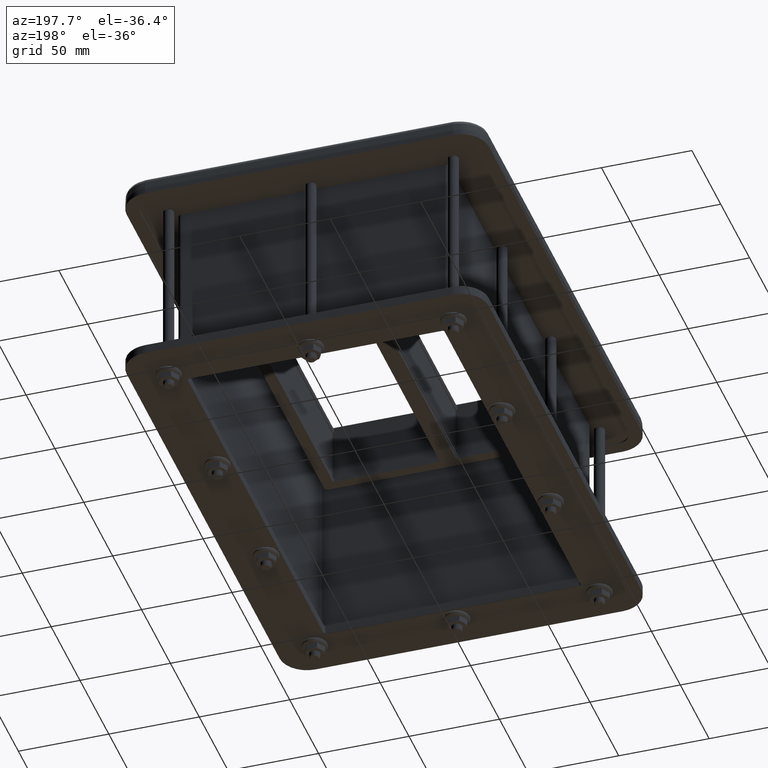
[diagram: clean part render]
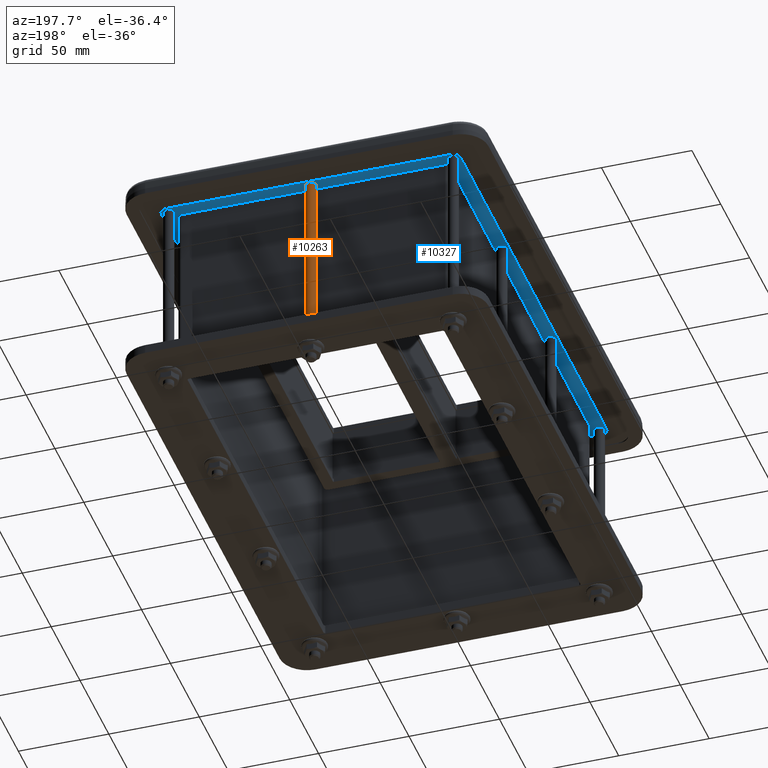
[diagram: same view with the hole feature highlighted: cylindrical wall and planar end face, labeled with their STEP entity ids]
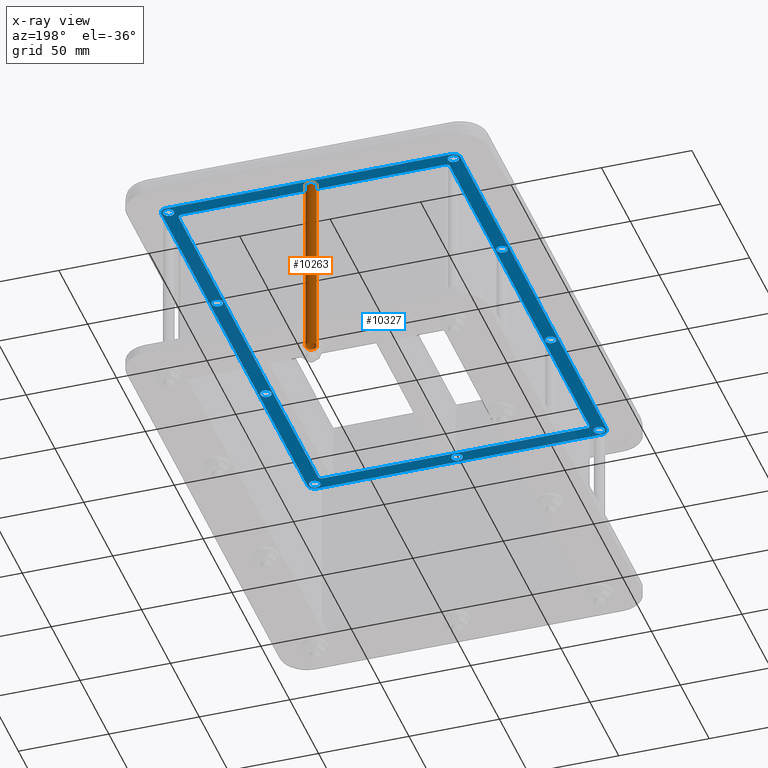
[diagram: x-ray of the same camera — body ghosted, the hole faces saturated]
A machine part, auxiliary view. The highlighted faces form one hole feature of diameter 6 mm: the cylindrical wall (entity #10263, orange) and its adjacent planar end face (entity #10327, blue) — they share a circular edge in the B-rep.
The next image is the same camera in x-ray (body ghosted, the hole faces saturated) — the bore reads through the body.
Wall:
#1124=FACE_OUTER_BOUND('',#1755,.T.);
#1755=EDGE_LOOP('',(#7243,#7244,#7245,#7246));
#2316=LINE('',#15797,#2988);
#2988=VECTOR('',#12492,3.);
#3741=CIRCLE('',#11047,3.);
#3745=CIRCLE('',#11066,3.);
#4275=VERTEX_POINT('',#15701);
#4290=VERTEX_POINT('',#15796);
#5367=EDGE_CURVE('',#4275,#4275,#3741,.T.);
#5396=EDGE_CURVE('',#4275,#4290,#2316,.T.);
#5397=EDGE_CURVE('',#4290,#4290,#3745,.T.);
#7243=ORIENTED_EDGE('',*,*,#5367,.T.);
#7244=ORIENTED_EDGE('',*,*,#5396,.T.);
#7245=ORIENTED_EDGE('',*,*,#5397,.F.);
#7246=ORIENTED_EDGE('',*,*,#5396,.F.);
#9381=CYLINDRICAL_SURFACE('',#11065,3.);
#10263=ADVANCED_FACE('',(#1124),#9381,.T.);
#11047=AXIS2_PLACEMENT_3D('',#15702,#12447,#12448);
#11065=AXIS2_PLACEMENT_3D('',#15795,#12490,#12491);
#11066=AXIS2_PLACEMENT_3D('',#15798,#12493,#12494);
#12447=DIRECTION('center_axis',(-3.26025335058604E-33,-9.14125345840323E-33,
1.));
#12448=DIRECTION('ref_axis',(1.,1.93241896527716E-33,-5.69673073916615E-17));
#12490=DIRECTION('center_axis',(-5.69673073916615E-17,2.51622236764938E-17,
-1.));
#12491=DIRECTION('ref_axis',(1.,1.93241896527716E-33,-5.69673073916615E-17));
#12492=DIRECTION('',(5.69673073916615E-17,-2.51622236764938E-17,1.));
#12493=DIRECTION('center_axis',(0.,0.,1.));
#12494=DIRECTION('ref_axis',(1.,1.93241896527716E-33,-5.69673073916615E-17));
#15701=CARTESIAN_POINT('',(-3.,126.5,-124.2));
#15702=CARTESIAN_POINT('Origin',(-4.61435189872454E-15,126.5,-124.2));
#15795=CARTESIAN_POINT('Origin',(3.15544362088403E-29,126.5,-43.2));
#15796=CARTESIAN_POINT('',(-3.,126.5,-19.2));
#15797=CARTESIAN_POINT('',(-3.,126.5,-43.2));
#15798=CARTESIAN_POINT('Origin',(1.36721537739991E-15,126.5,-19.2));
End face:
#643=FACE_BOUND('',#1824,.T.);
#644=FACE_BOUND('',#1825,.T.);
#645=FACE_BOUND('',#1826,.T.);
#646=FACE_BOUND('',#1827,.T.);
#647=FACE_BOUND('',#1828,.T.);
#648=FACE_BOUND('',#1829,.T.);
#649=FACE_BOUND('',#1830,.T.);
#650=FACE_BOUND('',#1831,.T.);
#651=FACE_BOUND('',#1832,.T.);
#652=FACE_BOUND('',#1833,.T.);
#653=FACE_BOUND('',#1834,.T.);
#786=PLANE('',#11167);
#1188=FACE_OUTER_BOUND('',#1823,.T.);
#1823=EDGE_LOOP('',(#7533,#7534,#7535,#7536,#7537,#7538,#7539,#7540));
#1824=EDGE_LOOP('',(#7541));
#1825=EDGE_LOOP('',(#7542));
#1826=EDGE_LOOP('',(#7543));
#1827=EDGE_LOOP('',(#7544));
#1828=EDGE_LOOP('',(#7545));
#1829=EDGE_LOOP('',(#7546));
#1830=EDGE_LOOP('',(#7547));
#1831=EDGE_LOOP('',(#7548));
#1832=EDGE_LOOP('',(#7549));
#1833=EDGE_LOOP('',(#7550));
#1834=EDGE_LOOP('',(#7551,#7552,#7553,#7554,#7555,#7556,#7557,#7558));
#2377=LINE('',#16108,#3049);
#2380=LINE('',#16116,#3052);
#2383=LINE('',#16124,#3055);
#2386=LINE('',#16131,#3058);
#2387=LINE('',#16137,#3059);
#2388=LINE('',#16141,#3060);
#2389=LINE('',#16145,#3061);
#2390=LINE('',#16148,#3062);
#3049=VECTOR('',#12737,10.);
#3052=VECTOR('',#12746,10.);
#3055=VECTOR('',#12755,10.);
#3058=VECTOR('',#12764,10.);
#3059=VECTOR('',#12769,10.);
#3060=VECTOR('',#12772,10.);
#3061=VECTOR('',#12775,10.);
#3062=VECTOR('',#12778,10.);
#3600=CIRCLE('',#10772,3.);
#3634=CIRCLE('',#10826,3.);
#3651=CIRCLE('',#10862,3.);
#3664=CIRCLE('',#10892,3.);
#3681=CIRCLE('',#10928,3.);
#3698=CIRCLE('',#10964,3.);
#3715=CIRCLE('',#11000,3.);
#3732=CIRCLE('',#11036,3.);
#3745=CIRCLE('',#11066,3.);
#3762=CIRCLE('',#11102,3.);
#3779=CIRCLE('',#11156,2.1);
#3780=CIRCLE('',#11159,2.1);
#3781=CIRCLE('',#11162,2.1);
#3782=CIRCLE('',#11165,2.1);
#3783=CIRCLE('',#11168,4.);
#3784=CIRCLE('',#11169,3.99999999999997);
#3785=CIRCLE('',#11170,3.99999999999999);
#3786=CIRCLE('',#11171,3.99999999999999);
#4049=VERTEX_POINT('',#14511);
#4102=VERTEX_POINT('',#14729);
#4130=VERTEX_POINT('',#14896);
#4154=VERTEX_POINT('',#15012);
#4182=VERTEX_POINT('',#15179);
#4210=VERTEX_POINT('',#15346);
#4238=VERTEX_POINT('',#15513);
#4266=VERTEX_POINT('',#15680);
#4290=VERTEX_POINT('',#15796);
#4318=VERTEX_POINT('',#15963);
#4351=VERTEX_POINT('',#16101);
#4352=VERTEX_POINT('',#16102);
#4353=VERTEX_POINT('',#16107);
#4354=VERTEX_POINT('',#16111);
#4355=VERTEX_POINT('',#16115);
#4356=VERTEX_POINT('',#16119);
#4357=VERTEX_POINT('',#16123);
#4358=VERTEX_POINT('',#16127);
#4359=VERTEX_POINT('',#16133);
#4360=VERTEX_POINT('',#16134);
#4361=VERTEX_POINT('',#16136);
#4362=VERTEX_POINT('',#16138);
#4363=VERTEX_POINT('',#16140);
#4364=VERTEX_POINT('',#16142);
#4365=VERTEX_POINT('',#16144);
#4366=VERTEX_POINT('',#16146);
#5024=EDGE_CURVE('',#4049,#4049,#3600,.T.);
#5094=EDGE_CURVE('',#4102,#4102,#3634,.T.);
#5139=EDGE_CURVE('',#4130,#4130,#3651,.T.);
#5178=EDGE_CURVE('',#4154,#4154,#3664,.T.);
#5223=EDGE_CURVE('',#4182,#4182,#3681,.T.);
#5268=EDGE_CURVE('',#4210,#4210,#3698,.T.);
#5313=EDGE_CURVE('',#4238,#4238,#3715,.T.);
#5358=EDGE_CURVE('',#4266,#4266,#3732,.T.);
#5397=EDGE_CURVE('',#4290,#4290,#3745,.T.);
#5442=EDGE_CURVE('',#4318,#4318,#3762,.T.);
#5509=EDGE_CURVE('',#4351,#4352,#3779,.T.);
#5512=EDGE_CURVE('',#4352,#4353,#2377,.T.);
#5514=EDGE_CURVE('',#4353,#4354,#3780,.T.);
#5516=EDGE_CURVE('',#4354,#4355,#2380,.T.);
#5518=EDGE_CURVE('',#4355,#4356,#3781,.T.);
#5520=EDGE_CURVE('',#4356,#4357,#2383,.T.);
#5522=EDGE_CURVE('',#4357,#4358,#3782,.T.);
#5524=EDGE_CURVE('',#4358,#4351,#2386,.T.);
#5525=EDGE_CURVE('',#4359,#4360,#3783,.T.);
#5526=EDGE_CURVE('',#4361,#4359,#2387,.T.);
#5527=EDGE_CURVE('',#4362,#4361,#3784,.T.);
#5528=EDGE_CURVE('',#4363,#4362,#2388,.T.);
#5529=EDGE_CURVE('',#4364,#4363,#3785,.T.);
#5530=EDGE_CURVE('',#4365,#4364,#2389,.T.);
#5531=EDGE_CURVE('',#4366,#4365,#3786,.T.);
#5532=EDGE_CURVE('',#4360,#4366,#2390,.T.);
#7533=ORIENTED_EDGE('',*,*,#5525,.F.);
#7534=ORIENTED_EDGE('',*,*,#5526,.F.);
#7535=ORIENTED_EDGE('',*,*,#5527,.F.);
#7536=ORIENTED_EDGE('',*,*,#5528,.F.);
#7537=ORIENTED_EDGE('',*,*,#5529,.F.);
#7538=ORIENTED_EDGE('',*,*,#5530,.F.);
#7539=ORIENTED_EDGE('',*,*,#5531,.F.);
#7540=ORIENTED_EDGE('',*,*,#5532,.F.);
#7541=ORIENTED_EDGE('',*,*,#5442,.T.);
#7542=ORIENTED_EDGE('',*,*,#5397,.T.);
#7543=ORIENTED_EDGE('',*,*,#5358,.T.);
#7544=ORIENTED_EDGE('',*,*,#5313,.T.);
#7545=ORIENTED_EDGE('',*,*,#5268,.T.);
#7546=ORIENTED_EDGE('',*,*,#5223,.T.);
#7547=ORIENTED_EDGE('',*,*,#5178,.T.);
#7548=ORIENTED_EDGE('',*,*,#5139,.T.);
#7549=ORIENTED_EDGE('',*,*,#5094,.T.);
#7550=ORIENTED_EDGE('',*,*,#5024,.T.);
#7551=ORIENTED_EDGE('',*,*,#5509,.T.);
#7552=ORIENTED_EDGE('',*,*,#5512,.T.);
#7553=ORIENTED_EDGE('',*,*,#5514,.T.);
#7554=ORIENTED_EDGE('',*,*,#5516,.T.);
#7555=ORIENTED_EDGE('',*,*,#5518,.T.);
#7556=ORIENTED_EDGE('',*,*,#5520,.T.);
#7557=ORIENTED_EDGE('',*,*,#5522,.T.);
#7558=ORIENTED_EDGE('',*,*,#5524,.T.);
#10327=ADVANCED_FACE('',(#1188,#643,#644,#645,#646,#647,#648,#649,#650,
#651,#652,#653),#786,.F.);
#10772=AXIS2_PLACEMENT_3D('',#14513,#11833,#11834);
#10826=AXIS2_PLACEMENT_3D('',#14731,#11957,#11958);
#10862=AXIS2_PLACEMENT_3D('',#14898,#12037,#12038);
#10892=AXIS2_PLACEMENT_3D('',#15014,#12105,#12106);
#10928=AXIS2_PLACEMENT_3D('',#15181,#12185,#12186);
#10964=AXIS2_PLACEMENT_3D('',#15348,#12265,#12266);
#11000=AXIS2_PLACEMENT_3D('',#15515,#12345,#12346);
#11036=AXIS2_PLACEMENT_3D('',#15682,#12425,#12426);
#11066=AXIS2_PLACEMENT_3D('',#15798,#12493,#12494);
#11102=AXIS2_PLACEMENT_3D('',#15965,#12573,#12574);
#11156=AXIS2_PLACEMENT_3D('',#16103,#12731,#12732);
#11159=AXIS2_PLACEMENT_3D('',#16112,#12741,#12742);
#11162=AXIS2_PLACEMENT_3D('',#16120,#12750,#12751);
#11165=AXIS2_PLACEMENT_3D('',#16128,#12759,#12760);
#11167=AXIS2_PLACEMENT_3D('',#16132,#12765,#12766);
#11168=AXIS2_PLACEMENT_3D('',#16135,#12767,#12768);
#11169=AXIS2_PLACEMENT_3D('',#16139,#12770,#12771);
#11170=AXIS2_PLACEMENT_3D('',#16143,#12773,#12774);
#11171=AXIS2_PLACEMENT_3D('',#16147,#12776,#12777);
#11833=DIRECTION('center_axis',(0.,0.,1.));
#11834=DIRECTION('ref_axis',(1.,9.95682444457783E-60,2.18360471415087E-16));
#11957=DIRECTION('center_axis',(0.,0.,1.));
#11958=DIRECTION('ref_axis',(1.,1.93241896527685E-33,-3.18562079941605E-17));
#12037=DIRECTION('center_axis',(0.,0.,1.));
#12038=DIRECTION('ref_axis',(1.,1.40017843751876E-58,2.22527861478278E-16));
#12105=DIRECTION('center_axis',(0.,0.,1.));
#12106=DIRECTION('ref_axis',(1.,1.93241896527771E-33,3.70637849236481E-15));
#12185=DIRECTION('center_axis',(0.,0.,1.));
#12186=DIRECTION('ref_axis',(0.33112807963815,0.943585817440656,1.96263524482825E-16));
#12265=DIRECTION('center_axis',(0.,0.,1.));
#12266=DIRECTION('ref_axis',(1.,1.93241896527501E-33,1.52890624585544E-16));
#12345=DIRECTION('center_axis',(0.,0.,1.));
#12346=DIRECTION('ref_axis',(1.,1.9324189652788E-33,-1.47942529872301E-16));
#12425=DIRECTION('center_axis',(0.,0.,1.));
#12426=DIRECTION('ref_axis',(1.,4.90939225826135E-163,4.37804773852009E-18));
#12493=DIRECTION('center_axis',(0.,0.,1.));
#12494=DIRECTION('ref_axis',(1.,1.93241896527716E-33,-5.69673073916615E-17));
#12573=DIRECTION('center_axis',(0.,0.,1.));
#12574=DIRECTION('ref_axis',(1.,1.93241896527703E-33,-1.00485275398481E-17));
#12731=DIRECTION('center_axis',(0.,0.,1.));
#12732=DIRECTION('ref_axis',(1.,0.,0.));
#12737=DIRECTION('',(0.,1.,0.));
#12741=DIRECTION('center_axis',(0.,0.,1.));
#12742=DIRECTION('ref_axis',(0.,1.,0.));
#12746=DIRECTION('',(-1.,-1.21835174170113E-16,0.));
#12750=DIRECTION('center_axis',(0.,0.,1.));
#12751=DIRECTION('ref_axis',(-1.,0.,0.));
#12755=DIRECTION('',(7.35780861599773E-17,-1.,0.));
#12759=DIRECTION('center_axis',(0.,0.,1.));
#12760=DIRECTION('ref_axis',(0.,-1.,0.));
#12764=DIRECTION('',(1.,0.,0.));
#12765=DIRECTION('center_axis',(0.,0.,1.));
#12766=DIRECTION('ref_axis',(1.,0.,0.));
#12767=DIRECTION('center_axis',(0.,0.,1.));
#12768=DIRECTION('ref_axis',(5.55111512312577E-16,1.,0.));
#12769=DIRECTION('',(0.,1.,0.));
#12770=DIRECTION('center_axis',(0.,0.,1.));
#12771=DIRECTION('ref_axis',(1.,0.,0.));
#12772=DIRECTION('',(1.,-2.25712431944123E-16,0.));
#12773=DIRECTION('center_axis',(0.,0.,1.));
#12774=DIRECTION('ref_axis',(0.,-1.,0.));
#12775=DIRECTION('',(0.,-1.,0.));
#12776=DIRECTION('center_axis',(0.,0.,1.));
#12777=DIRECTION('ref_axis',(-1.,-1.11022302462516E-15,0.));
#12778=DIRECTION('',(-1.,2.82140539930154E-17,0.));
#14511=CARTESIAN_POINT('',(75.7,42.2123569059676,-19.2));
#14513=CARTESIAN_POINT('Origin',(78.7,42.2123569059676,-19.2));
#14729=CARTESIAN_POINT('',(75.7,-42.2123569059676,-19.2));
#14731=CARTESIAN_POINT('Origin',(78.7,-42.2123569059676,-19.2));
#14896=CARTESIAN_POINT('',(75.7,-126.512356905968,-19.2));
#14898=CARTESIAN_POINT('Origin',(78.7,-126.512356905968,-19.2));
#15012=CARTESIAN_POINT('',(-3.00000000000009,-126.5,-19.2));
#15014=CARTESIAN_POINT('Origin',(-8.89530838167566E-14,-126.5,-19.2));
#15179=CARTESIAN_POINT('',(-79.6933842389145,-129.343114358289,-19.2));
#15181=CARTESIAN_POINT('Origin',(-78.7,-126.512356905967,-19.2));
#15346=CARTESIAN_POINT('',(-81.7,-42.2123569059675,-19.2));
#15348=CARTESIAN_POINT('Origin',(-78.7,-42.2123569059675,-19.2));
#15513=CARTESIAN_POINT('',(-81.7,42.2123569059675,-19.2));
#15515=CARTESIAN_POINT('Origin',(-78.7,42.2123569059675,-19.2));
#15680=CARTESIAN_POINT('',(-81.7,126.512356905968,-19.2));
#15682=CARTESIAN_POINT('Origin',(-78.7,126.512356905968,-19.2));
#15796=CARTESIAN_POINT('',(-3.,126.5,-19.2));
#15798=CARTESIAN_POINT('Origin',(1.36721537739991E-15,126.5,-19.2));
#15963=CARTESIAN_POINT('',(75.7,126.512356905968,-19.2));
#15965=CARTESIAN_POINT('Origin',(78.7,126.512356905968,-19.2));
#16101=CARTESIAN_POINT('',(72.9,-122.812356905968,-19.2));
#16102=CARTESIAN_POINT('',(75.,-120.712356905968,-19.2));
#16103=CARTESIAN_POINT('Origin',(72.9,-120.712356905968,-19.2));
#16107=CARTESIAN_POINT('',(75.,120.712356905968,-19.2));
#16108=CARTESIAN_POINT('',(75.,123.606178452984,-19.2));
#16111=CARTESIAN_POINT('',(72.9,122.812356905968,-19.2));
#16112=CARTESIAN_POINT('Origin',(72.9,120.712356905968,-19.2));
#16115=CARTESIAN_POINT('',(-72.9,122.812356905968,-19.2));
#16116=CARTESIAN_POINT('',(-36.45,122.812356905968,-19.2));
#16119=CARTESIAN_POINT('',(-75.,120.712356905968,-19.2));
#16120=CARTESIAN_POINT('Origin',(-72.9,120.712356905968,-19.2));
#16123=CARTESIAN_POINT('',(-75.,-120.712356905968,-19.2));
#16124=CARTESIAN_POINT('',(-75.,2.89382154701597,-19.2));
#16127=CARTESIAN_POINT('',(-72.9,-122.812356905968,-19.2));
#16128=CARTESIAN_POINT('Origin',(-72.9,-120.712356905968,-19.2));
#16131=CARTESIAN_POINT('',(36.45,-122.812356905968,-19.2));
#16132=CARTESIAN_POINT('Origin',(0.,126.5,-19.2));
#16133=CARTESIAN_POINT('',(82.7,126.512356905968,-19.2));
#16134=CARTESIAN_POINT('',(78.7,130.512356905968,-19.2));
#16135=CARTESIAN_POINT('Origin',(78.7,126.512356905968,-19.2));
#16136=CARTESIAN_POINT('',(82.7,-126.512356905968,-19.2));
#16137=CARTESIAN_POINT('',(82.7,126.506178452984,-19.2));
#16138=CARTESIAN_POINT('',(78.7,-130.512356905968,-19.2));
#16139=CARTESIAN_POINT('Origin',(78.7,-126.512356905968,-19.2));
#16140=CARTESIAN_POINT('',(-78.7,-130.512356905968,-19.2));
#16141=CARTESIAN_POINT('',(39.35,-130.512356905968,-19.2));
#16142=CARTESIAN_POINT('',(-82.7,-126.512356905968,-19.2));
#16143=CARTESIAN_POINT('Origin',(-78.7,-126.512356905968,-19.2));
#16144=CARTESIAN_POINT('',(-82.7,126.512356905968,-19.2));
#16145=CARTESIAN_POINT('',(-82.7,-0.00617845298404696,-19.2));
#16146=CARTESIAN_POINT('',(-78.7,130.512356905968,-19.2));
#16147=CARTESIAN_POINT('Origin',(-78.7,126.512356905968,-19.2));
#16148=CARTESIAN_POINT('',(-39.35,130.512356905968,-19.2));